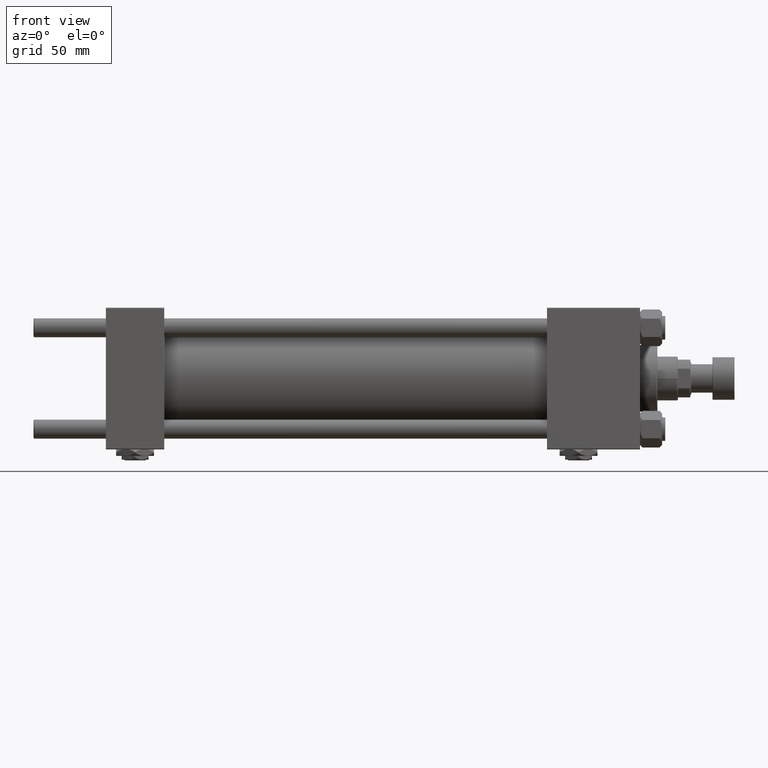
[diagram: clean part render]
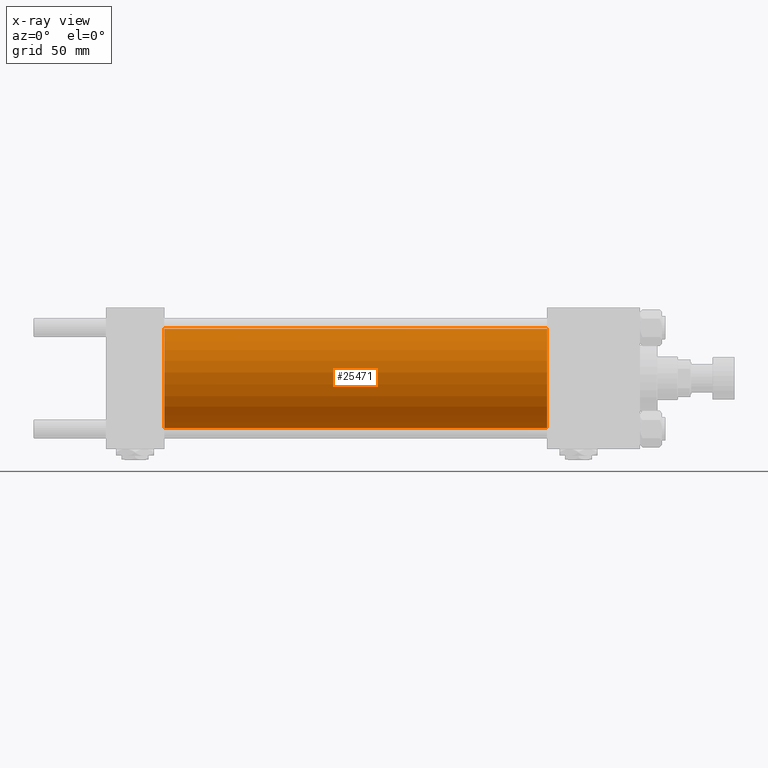
[diagram: x-ray — body ghosted, one internal face saturated and labeled with its STEP entity id]
A machine part, front view, then the same camera in x-ray: the body is ghosted and one INTERNAL B-rep face — a face not visible from any outside direction — is saturated and labeled: STEP entity #25471.
In plain terms, the highlighted cylindrical surface (partial cylindrical patch) has radius 31.5 mm, axis along (-1, -0, -0).
Its self-contained STEP definition (entity closure, byte-faithful):
#90 = EDGE_CURVE ( 'NONE', #23341, #46637, #12505, .T. ) ;
#1674 = CARTESIAN_POINT ( 'NONE',  ( 37.00000000000000000, 3.857637417314162689E-15, -31.50000000000000000 ) ) ;
#1676 = VERTEX_POINT ( 'NONE', #10507 ) ;
#2509 = EDGE_CURVE ( 'NONE', #1676, #17293, #12468, .T. ) ;
#3339 = CARTESIAN_POINT ( 'NONE',  ( 279.9999999999999432, 0.000000000000000000, 31.50000000000000000 ) ) ;
#7171 = AXIS2_PLACEMENT_3D ( 'NONE', #49680, #38028, #17390 ) ;
#7612 = ORIENTED_EDGE ( 'NONE', *, *, #45298, .T. ) ;
#7902 = DIRECTION ( 'NONE',  ( 0.000000000000000000, 0.000000000000000000, -1.000000000000000000 ) ) ;
#9870 = AXIS2_PLACEMENT_3D ( 'NONE', #11613, #51818, #7902 ) ;
#10493 = FACE_OUTER_BOUND ( 'NONE', #49624, .T. ) ;
#10507 = CARTESIAN_POINT ( 'NONE',  ( 279.9999999999999432, 3.857637417314162689E-15, -31.50000000000000000 ) ) ;
#11613 = CARTESIAN_POINT ( 'NONE',  ( 37.00000000000000000, 0.000000000000000000, 0.000000000000000000 ) ) ;
#12224 = CIRCLE ( 'NONE', #7171, 31.50000000000000000 ) ;
#12468 = LINE ( 'NONE', #41033, #37134 ) ;
#12505 = LINE ( 'NONE', #29149, #50587 ) ;
#17293 = VERTEX_POINT ( 'NONE', #1674 ) ;
#17390 = DIRECTION ( 'NONE',  ( 0.000000000000000000, 0.000000000000000000, -1.000000000000000000 ) ) ;
#19465 = CYLINDRICAL_SURFACE ( 'NONE', #30023, 31.50000000000000000 ) ;
#19883 = DIRECTION ( 'NONE',  ( -1.000000000000000000, -0.000000000000000000, -0.000000000000000000 ) ) ;
#22904 = CARTESIAN_POINT ( 'NONE',  ( 279.9999999999999432, 0.000000000000000000, 0.000000000000000000 ) ) ;
#23341 = VERTEX_POINT ( 'NONE', #3339 ) ;
#25471 = ADVANCED_FACE ( 'NONE', ( #10493 ), #19465, .F. ) ;
#29001 = EDGE_CURVE ( 'NONE', #46637, #17293, #32664, .T. ) ;
#29149 = CARTESIAN_POINT ( 'NONE',  ( 279.9999999999999432, 0.000000000000000000, 31.50000000000000000 ) ) ;
#30023 = AXIS2_PLACEMENT_3D ( 'NONE', #22904, #47510, #39054 ) ;
#32664 = CIRCLE ( 'NONE', #9870, 31.50000000000000000 ) ;
#32866 = DIRECTION ( 'NONE',  ( -1.000000000000000000, -0.000000000000000000, -0.000000000000000000 ) ) ;
#35405 = ORIENTED_EDGE ( 'NONE', *, *, #2509, .T. ) ;
#37134 = VECTOR ( 'NONE', #19883, 1000.000000000000000 ) ;
#38028 = DIRECTION ( 'NONE',  ( 1.000000000000000000, 0.000000000000000000, 0.000000000000000000 ) ) ;
#39054 = DIRECTION ( 'NONE',  ( 0.000000000000000000, 0.000000000000000000, 1.000000000000000000 ) ) ;
#41033 = CARTESIAN_POINT ( 'NONE',  ( 279.9999999999999432, 3.857637417314162689E-15, -31.50000000000000000 ) ) ;
#41950 = CARTESIAN_POINT ( 'NONE',  ( 37.00000000000000000, 0.000000000000000000, 31.50000000000000000 ) ) ;
#45298 = EDGE_CURVE ( 'NONE', #23341, #1676, #12224, .T. ) ;
#46637 = VERTEX_POINT ( 'NONE', #41950 ) ;
#47510 = DIRECTION ( 'NONE',  ( -1.000000000000000000, -0.000000000000000000, -0.000000000000000000 ) ) ;
#48007 = ORIENTED_EDGE ( 'NONE', *, *, #29001, .F. ) ;
#48781 = ORIENTED_EDGE ( 'NONE', *, *, #90, .F. ) ;
#49624 = EDGE_LOOP ( 'NONE', ( #7612, #35405, #48007, #48781 ) ) ;
#49680 = CARTESIAN_POINT ( 'NONE',  ( 279.9999999999999432, 0.000000000000000000, 0.000000000000000000 ) ) ;
#50587 = VECTOR ( 'NONE', #32866, 1000.000000000000000 ) ;
#51818 = DIRECTION ( 'NONE',  ( 1.000000000000000000, 0.000000000000000000, 0.000000000000000000 ) ) ;